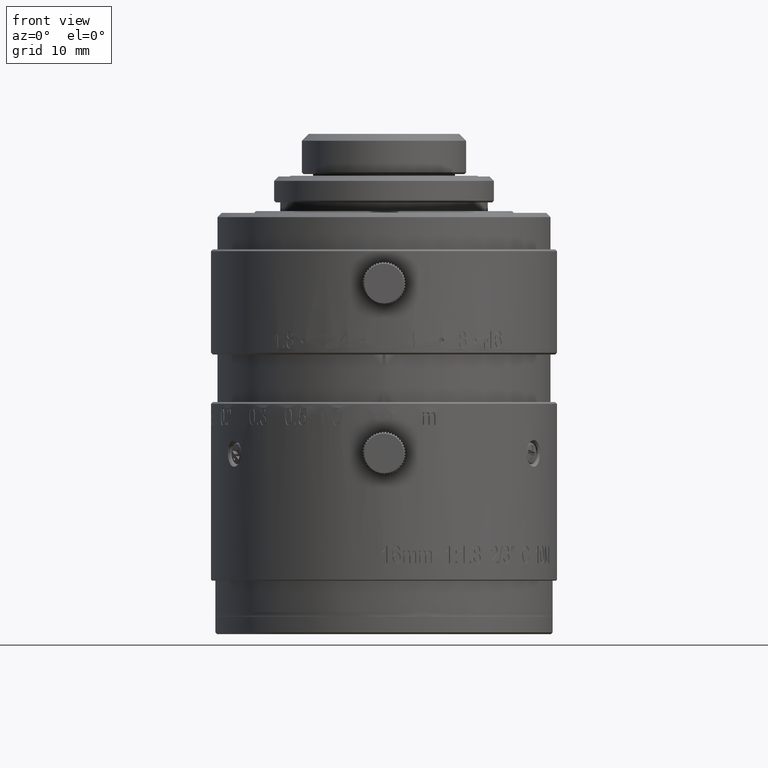
[diagram: clean part render]
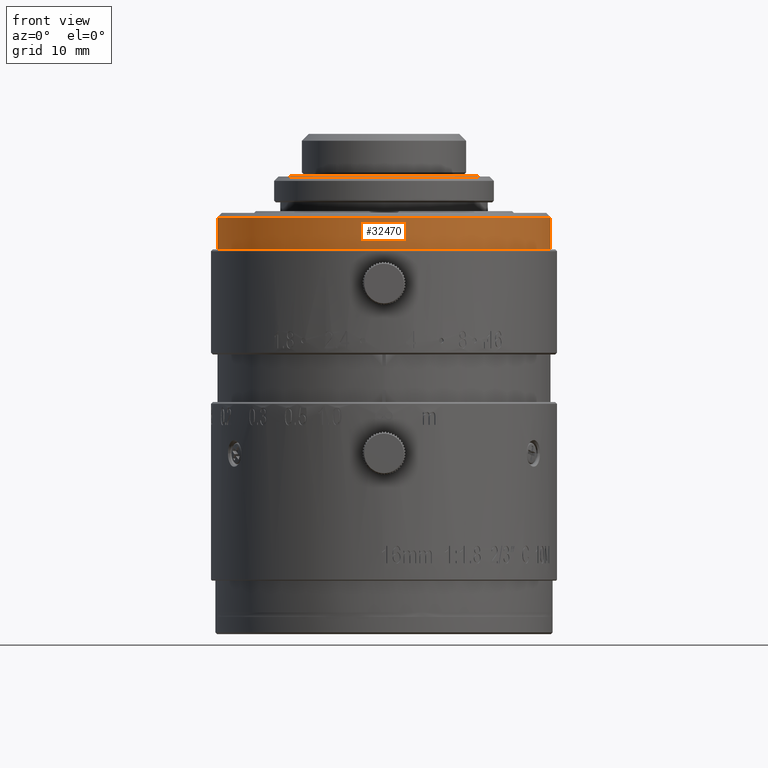
[diagram: same view with one face highlighted and labeled with its STEP entity id]
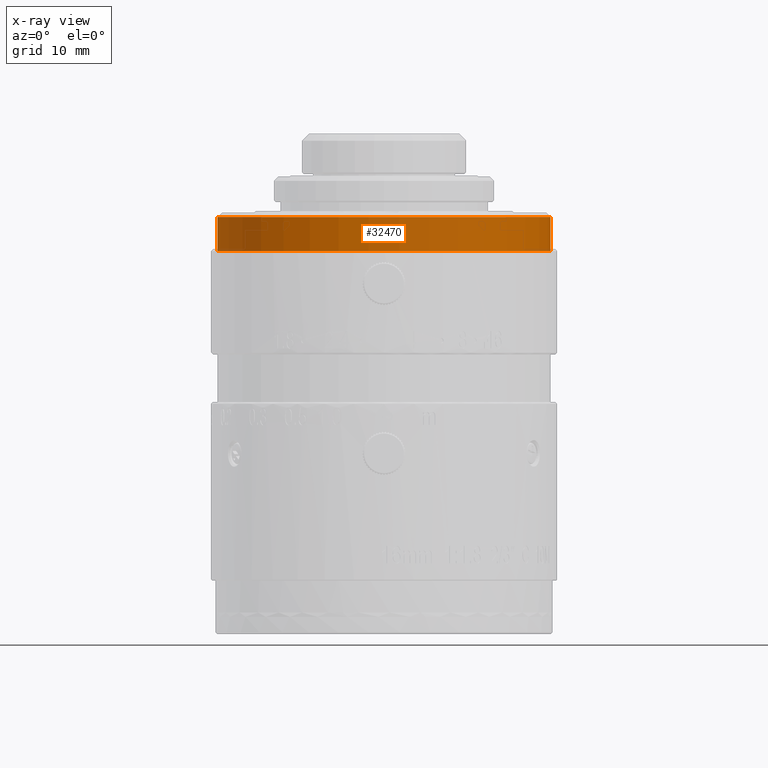
[diagram: x-ray of the same camera — body ghosted, the highlighted face saturated]
A machine part, front view. The second image highlights one B-rep face of the part: STEP entity #32470.
The next image is the same camera in x-ray: the body ghosted, the highlighted face saturated — about 0% of this face is hidden behind the body in this view.
In plain terms, the highlighted cylindrical surface (partial cylindrical patch) has radius 19.25 mm, axis along (0, 0, -1).
Its self-contained STEP definition (entity closure, byte-faithful):
#238 = VERTEX_POINT ( 'NONE', #17881 ) ;
#466 = EDGE_CURVE ( 'NONE', #63132, #238, #65963, .T. ) ;
#2181 = DIRECTION ( 'NONE',  ( 0.000000000000000000, 0.000000000000000000, -1.000000000000000000 ) ) ;
#2275 = DIRECTION ( 'NONE',  ( 0.000000000000000000, 0.000000000000000000, -1.000000000000000000 ) ) ;
#2285 = CARTESIAN_POINT ( 'NONE',  ( -19.25000000000000000, 0.000000000000000000, 44.22199999999999420 ) ) ;
#4703 = CYLINDRICAL_SURFACE ( 'NONE', #22713, 19.25000000000000000 ) ;
#6262 = DIRECTION ( 'NONE',  ( 1.000000000000000000, 0.000000000000000000, 0.000000000000000000 ) ) ;
#7255 = EDGE_LOOP ( 'NONE', ( #72195, #55980, #56203, #59866 ) ) ;
#8077 = CARTESIAN_POINT ( 'NONE',  ( 19.25000000000000000, 0.000000000000000000, 44.22199999999999420 ) ) ;
#8179 = CARTESIAN_POINT ( 'NONE',  ( -19.25000000000000000, 0.000000000000000000, 44.22199999999999420 ) ) ;
#10142 = FACE_OUTER_BOUND ( 'NONE', #7255, .T. ) ;
#11116 = CARTESIAN_POINT ( 'NONE',  ( 0.000000000000000000, 0.000000000000000000, 44.22199999999999420 ) ) ;
#14745 = AXIS2_PLACEMENT_3D ( 'NONE', #18839, #75935, #6262 ) ;
#17881 = CARTESIAN_POINT ( 'NONE',  ( 19.25000000000000000, 0.000000000000000000, 40.29200000000000159 ) ) ;
#18839 = CARTESIAN_POINT ( 'NONE',  ( 0.000000000000000000, 0.000000000000000000, 40.29200000000000159 ) ) ;
#22713 = AXIS2_PLACEMENT_3D ( 'NONE', #81926, #35696, #74765 ) ;
#30811 = DIRECTION ( 'NONE',  ( 0.000000000000000000, 0.000000000000000000, 1.000000000000000000 ) ) ;
#32037 = DIRECTION ( 'NONE',  ( -1.000000000000000000, 0.000000000000000000, 0.000000000000000000 ) ) ;
#32470 = ADVANCED_FACE ( 'NONE', ( #10142 ), #4703, .T. ) ;
#34081 = EDGE_CURVE ( 'NONE', #238, #79341, #46907, .T. ) ;
#34144 = LINE ( 'NONE', #8179, #53093 ) ;
#34689 = EDGE_CURVE ( 'NONE', #60301, #63132, #66900, .T. ) ;
#35696 = DIRECTION ( 'NONE',  ( 0.000000000000000000, 0.000000000000000000, -1.000000000000000000 ) ) ;
#37362 = AXIS2_PLACEMENT_3D ( 'NONE', #11116, #30811, #32037 ) ;
#46907 = CIRCLE ( 'NONE', #14745, 19.25000000000000000 ) ;
#47147 = EDGE_CURVE ( 'NONE', #60301, #79341, #34144, .T. ) ;
#48877 = CARTESIAN_POINT ( 'NONE',  ( -19.25000000000000000, 0.000000000000000000, 40.29200000000000159 ) ) ;
#53093 = VECTOR ( 'NONE', #2275, 1000.000000000000000 ) ;
#55980 = ORIENTED_EDGE ( 'NONE', *, *, #34689, .F. ) ;
#56203 = ORIENTED_EDGE ( 'NONE', *, *, #47147, .T. ) ;
#59866 = ORIENTED_EDGE ( 'NONE', *, *, #34081, .F. ) ;
#60301 = VERTEX_POINT ( 'NONE', #2285 ) ;
#63132 = VERTEX_POINT ( 'NONE', #70821 ) ;
#65963 = LINE ( 'NONE', #8077, #79193 ) ;
#66900 = CIRCLE ( 'NONE', #37362, 19.25000000000000000 ) ;
#70821 = CARTESIAN_POINT ( 'NONE',  ( 19.25000000000000000, 0.000000000000000000, 44.22199999999999420 ) ) ;
#72195 = ORIENTED_EDGE ( 'NONE', *, *, #466, .F. ) ;
#74765 = DIRECTION ( 'NONE',  ( -1.000000000000000000, 0.000000000000000000, 0.000000000000000000 ) ) ;
#75935 = DIRECTION ( 'NONE',  ( 0.000000000000000000, 0.000000000000000000, -1.000000000000000000 ) ) ;
#79193 = VECTOR ( 'NONE', #2181, 1000.000000000000000 ) ;
#79341 = VERTEX_POINT ( 'NONE', #48877 ) ;
#81926 = CARTESIAN_POINT ( 'NONE',  ( 0.000000000000000000, 0.000000000000000000, -7.225900000000000212 ) ) ;